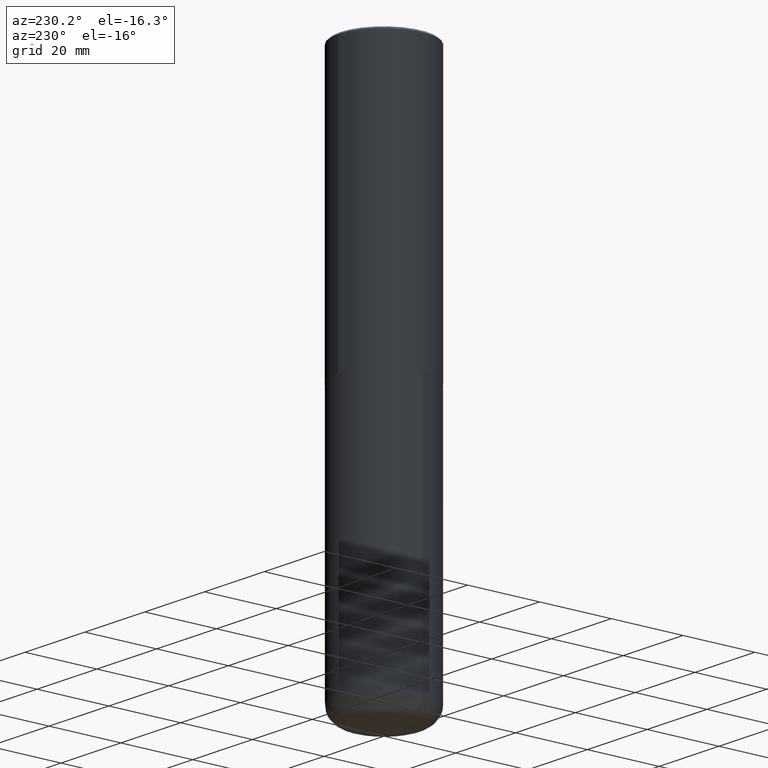
[diagram: clean part render]
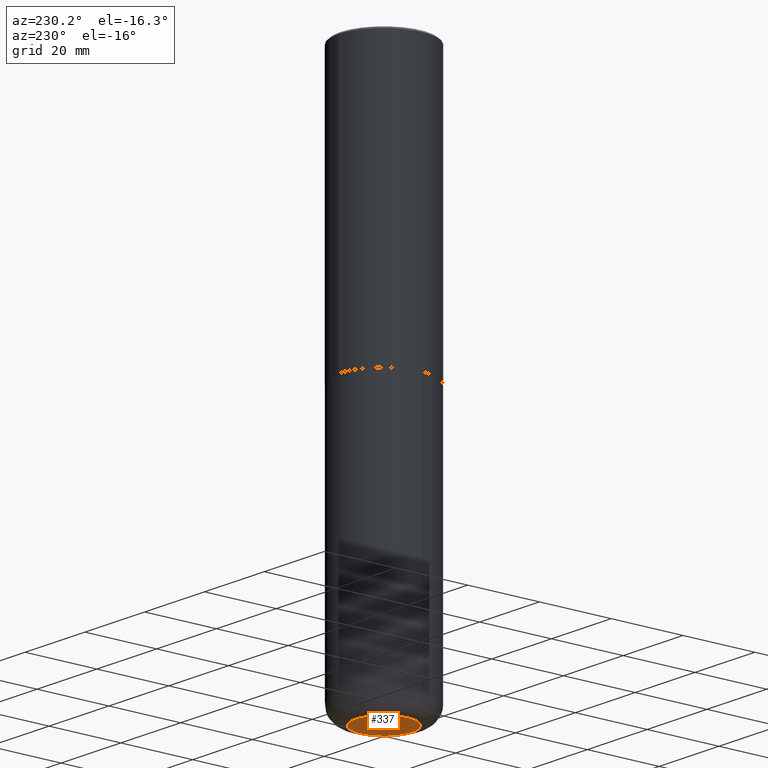
[diagram: same view with one face highlighted and labeled with its STEP entity id]
A machine part, auxiliary view. The second image highlights one B-rep face of the part: STEP entity #337.
In plain terms, the highlighted planar face has unit normal (0, -0, -1).
Its self-contained STEP definition (entity closure, byte-faithful):
#9 = ORIENTED_EDGE ( 'NONE', *, *, #178, .F. ) ;
#52 = DIRECTION ( 'NONE',  ( -2.445468806185136597E-29, 3.491481338843145583E-15, 1.000000000000000000 ) ) ;
#81 = CARTESIAN_POINT ( 'NONE',  ( 1.467281283711081958E-28, -2.094888803305887271E-14, -6.000000000000000888 ) ) ;
#96 = VERTEX_POINT ( 'NONE', #237 ) ;
#123 = PLANE ( 'NONE',  #248 ) ;
#127 = EDGE_LOOP ( 'NONE', ( #9, #294 ) ) ;
#144 = VERTEX_POINT ( 'NONE', #300 ) ;
#178 = EDGE_CURVE ( 'NONE', #144, #96, #212, .T. ) ;
#179 = DIRECTION ( 'NONE',  ( 1.000000000000000000, -6.982962677686263555E-15, 0.000000000000000000 ) ) ;
#206 = AXIS2_PLACEMENT_3D ( 'NONE', #81, #52, #179 ) ;
#212 = CIRCLE ( 'NONE', #206, 0.3099999999999999978 ) ;
#236 = CARTESIAN_POINT ( 'NONE',  ( 1.467281283711081958E-28, -2.094888803305887271E-14, -6.000000000000000888 ) ) ;
#237 = CARTESIAN_POINT ( 'NONE',  ( -0.3099999999999999978, -1.773949922604037162E-14, -6.000000000000000888 ) ) ;
#248 = AXIS2_PLACEMENT_3D ( 'NONE', #252, #385, #381 ) ;
#252 = CARTESIAN_POINT ( 'NONE',  ( 1.467281283711081958E-28, -2.094888803305887271E-14, -6.000000000000000888 ) ) ;
#286 = FACE_OUTER_BOUND ( 'NONE', #127, .T. ) ;
#294 = ORIENTED_EDGE ( 'NONE', *, *, #367, .F. ) ;
#300 = CARTESIAN_POINT ( 'NONE',  ( 0.3099999999999999978, -2.311360646314161602E-14, -6.000000000000000888 ) ) ;
#331 = DIRECTION ( 'NONE',  ( -2.445468806185136597E-29, 3.491481338843145583E-15, 1.000000000000000000 ) ) ;
#334 = CIRCLE ( 'NONE', #343, 0.3099999999999999978 ) ;
#337 = ADVANCED_FACE ( 'NONE', ( #286 ), #123, .T. ) ;
#343 = AXIS2_PLACEMENT_3D ( 'NONE', #236, #331, #366 ) ;
#366 = DIRECTION ( 'NONE',  ( 1.000000000000000000, -6.982962677686263555E-15, 0.000000000000000000 ) ) ;
#367 = EDGE_CURVE ( 'NONE', #96, #144, #334, .T. ) ;
#381 = DIRECTION ( 'NONE',  ( -1.000000000000000000, 6.982962677686265922E-15, -4.876176775795935793E-29 ) ) ;
#385 = DIRECTION ( 'NONE',  ( 2.438088387897960049E-29, -3.491481338843145188E-15, -1.000000000000000000 ) ) ;